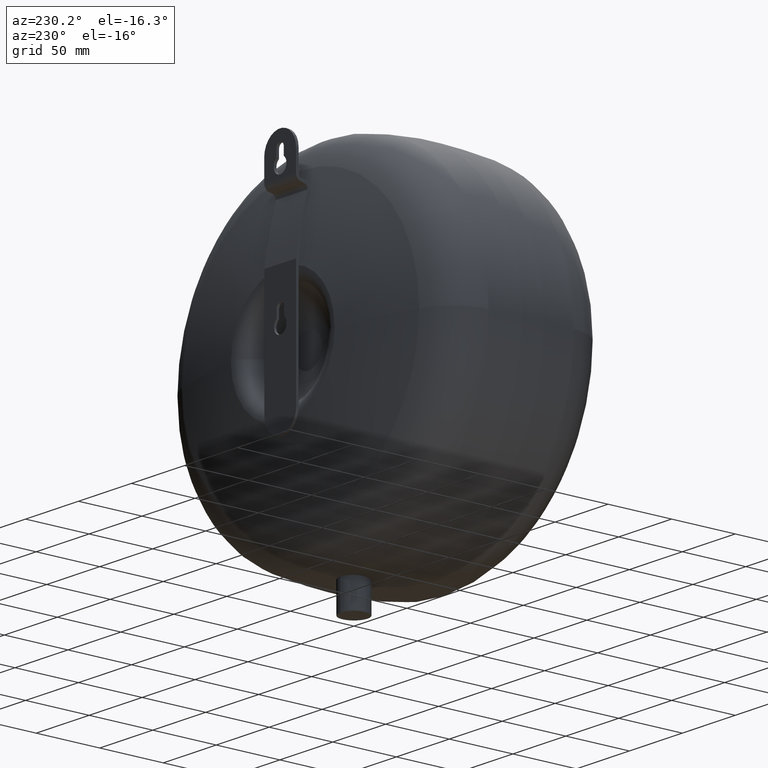
[diagram: clean part render]
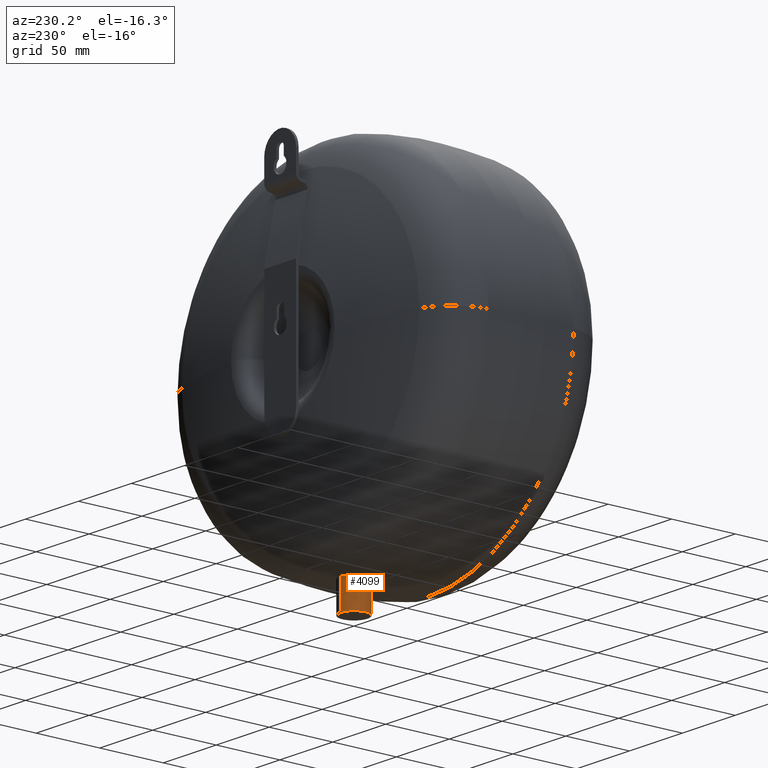
[diagram: same view with one face highlighted and labeled with its STEP entity id]
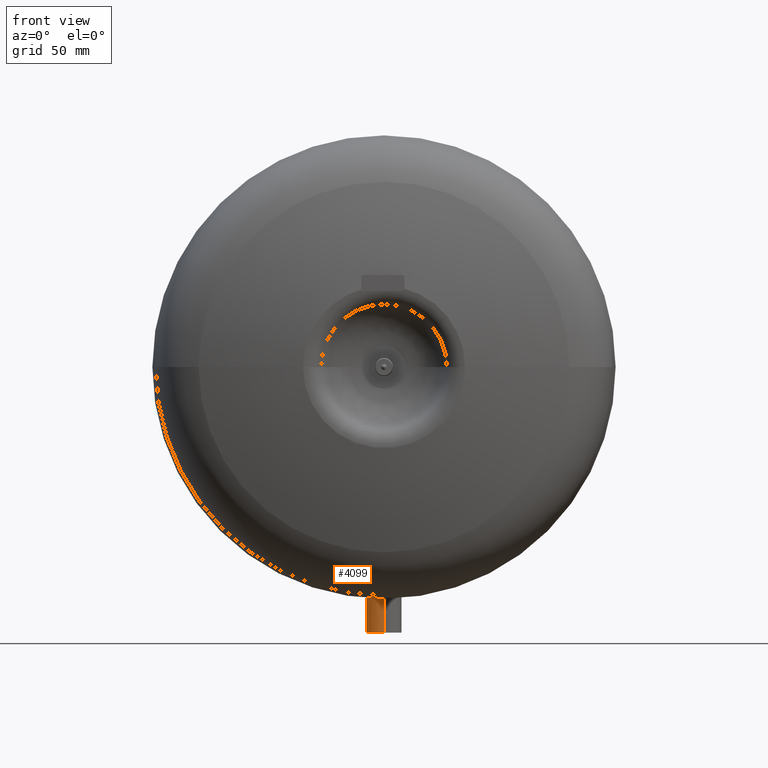
[diagram: same view with one face highlighted and labeled with its STEP entity id]
A machine part, auxiliary view. The second image highlights one B-rep face of the part: STEP entity #4099.
A second angle (front view) of the same face is appended — the face is thin or edge-on in the first view.
In plain terms, the highlighted cylindrical surface (edge-blend (fillet) strip) has radius 10.65 mm, axis along (0, 0, 1).
Its self-contained STEP definition (entity closure, byte-faithful):
#3921=CARTESIAN_POINT('',(2.373270E-015,10.65,22.642157915268985));
#3922=VERTEX_POINT('',#3921);
#3940=CARTESIAN_POINT('',(-5.694075868830296,9.000000000000028,22.617522868204873));
#3941=VERTEX_POINT('',#3940);
#3942=CARTESIAN_POINT('',(2.126011E-015,10.650000000000002,22.642157915268989));
#3943=CARTESIAN_POINT('',(-0.080471226281663,10.650000000000002,22.642157915268989));
#3944=CARTESIAN_POINT('',(-0.160940830993085,10.649087941876104,22.642129162029857));
#3945=CARTESIAN_POINT('',(-0.384500295253773,10.644019430161592,22.641969793486226));
#3946=CARTESIAN_POINT('',(-0.527526817750946,10.63789008646873,22.641777136826192));
#3947=CARTESIAN_POINT('',(-0.952377164734905,10.611093859117119,22.640944524503055));
#3948=CARTESIAN_POINT('',(-1.233545641887332,10.582093318434403,22.640049249332407));
#3949=CARTESIAN_POINT('',(-2.417834094479908,10.412096425090823,22.635065083696787));
#3950=CARTESIAN_POINT('',(-3.301962917216137,10.166343521618188,22.628012608250117));
#3951=CARTESIAN_POINT('',(-4.68188228413829,9.58351368538473,22.619486230610534));
#3952=CARTESIAN_POINT('',(-5.20041391055743,9.312327627107038,22.617032302062569));
#3953=CARTESIAN_POINT('',(-5.694075868830659,9.000000000000028,22.617522868204929));
#3954=B_SPLINE_CURVE_WITH_KNOTS('',3,(#3942,#3943,#3944,#3945,#3946,#3947,#3948,#3949,#3950,#3951,#3952,#3953),.UNSPECIFIED.,.F.,.U.,(4,2,2,2,2,4),(-0.60121491298339,-0.577075879133311,-0.534138016534265,-0.449382857453434,-0.175250056981459,0.0),.UNSPECIFIED.);
#3955=EDGE_CURVE('',#3922,#3941,#3954,.T.);
#3991=CARTESIAN_POINT('',(-1.155289E-015,-10.649999999999995,20.928000000000033));
#3992=VERTEX_POINT('',#3991);
#4035=CARTESIAN_POINT('',(0.0,10.650000000000006,0.0));
#4036=VERTEX_POINT('',#4035);
#4037=CARTESIAN_POINT('',(2.623239E-015,10.650000000000002,22.642157915268989));
#4038=DIRECTION('',(0.0,0.0,-1.0));
#4039=VECTOR('',#4038,22.642157915268989);
#4040=LINE('',#4037,#4039);
#4041=EDGE_CURVE('',#3922,#4036,#4040,.T.);
#4045=CARTESIAN_POINT('',(-1.371559E-015,-10.650000000000002,5.329071E-015));
#4046=VERTEX_POINT('',#4045);
#4047=CARTESIAN_POINT('',(-9.013103E-017,-10.649999999999995,20.928000000000033));
#4048=DIRECTION('',(0.0,0.0,-1.0));
#4049=VECTOR('',#4048,20.928000000000026);
#4050=LINE('',#4047,#4049);
#4051=EDGE_CURVE('',#3992,#4046,#4050,.T.);
#4063=CARTESIAN_POINT('',(0.0,0.0,11.750000000000028));
#4064=DIRECTION('',(6.123032E-017,3.320293E-016,1.0));
#4065=DIRECTION('',(0.0,1.0,0.0));
#4066=AXIS2_PLACEMENT_3D('',#4063,#4064,#4065);
#4067=CYLINDRICAL_SURFACE('',#4066,10.649999999999999);
#4068=ORIENTED_EDGE('',*,*,#4041,.T.);
#4069=CARTESIAN_POINT('',(0.0,0.0,0.0));
#4070=DIRECTION('',(0.0,0.0,1.0));
#4071=DIRECTION('',(0.0,1.0,0.0));
#4072=AXIS2_PLACEMENT_3D('',#4069,#4070,#4071);
#4073=CIRCLE('',#4072,10.649999999999995);
#4074=EDGE_CURVE('',#4036,#4046,#4073,.T.);
#4075=ORIENTED_EDGE('',*,*,#4074,.T.);
#4076=ORIENTED_EDGE('',*,*,#4051,.F.);
#4077=CARTESIAN_POINT('',(-5.694075868830296,9.000000000000028,22.617522868204873));
#4078=CARTESIAN_POINT('',(-6.362630598618985,8.577022071790879,22.611264821558962));
#4079=CARTESIAN_POINT('',(-6.974002982160229,8.084012789678127,22.60193431447351));
#4080=CARTESIAN_POINT('',(-8.453138946278024,6.613991498276988,22.564677025727917));
#4081=CARTESIAN_POINT('',(-9.274461465461087,5.422984461934192,22.524134329632176));
#4082=CARTESIAN_POINT('',(-10.368680918634155,2.81333493924015,22.39268762241278));
#4083=CARTESIAN_POINT('',(-10.641634214880881,1.394771278190092,22.300690145575402));
#4084=CARTESIAN_POINT('',(-10.658056980964659,-1.279082174415493,22.087413228435651));
#4085=CARTESIAN_POINT('',(-10.396872208634633,-2.71261328241016,21.951459111774966));
#4086=CARTESIAN_POINT('',(-9.317968177773651,-5.350578922817618,21.663207656195596));
#4087=CARTESIAN_POINT('',(-8.500311440268689,-6.555160532465635,21.512023396226624));
#4088=CARTESIAN_POINT('',(-6.609498204026345,-8.457622778186845,21.256933818526875));
#4089=CARTESIAN_POINT('',(-5.410886647587653,-9.283155219617498,21.136122548114258));
#4090=CARTESIAN_POINT('',(-2.778983939604927,-10.379398525128835,20.971097717375073));
#4091=CARTESIAN_POINT('',(-1.345577380532987,-10.650000000000006,20.928000000000026));
#4092=CARTESIAN_POINT('',(-1.554312E-015,-10.650000000000006,20.928000000000026));
#4093=B_SPLINE_CURVE_WITH_KNOTS('',3,(#4077,#4078,#4079,#4080,#4081,#4082,#4083,#4084,#4085,#4086,#4087,#4088,#4089,#4090,#4091,#4092),.UNSPECIFIED.,.F.,.U.,(4,2,2,2,2,2,2,4),(-4.259034982520168,-4.033403692959953,-3.633321428825217,-3.23323916469048,-2.828602587677757,-2.423966010665034,-2.020292796505137,-1.616619582345241),.UNSPECIFIED.);
#4094=EDGE_CURVE('',#3941,#3992,#4093,.T.);
#4095=ORIENTED_EDGE('',*,*,#4094,.F.);
#4096=ORIENTED_EDGE('',*,*,#3955,.F.);
#4097=EDGE_LOOP('',(#4068,#4075,#4076,#4095,#4096));
#4098=FACE_OUTER_BOUND('',#4097,.T.);
#4099=ADVANCED_FACE('',(#4098),#4067,.T.);